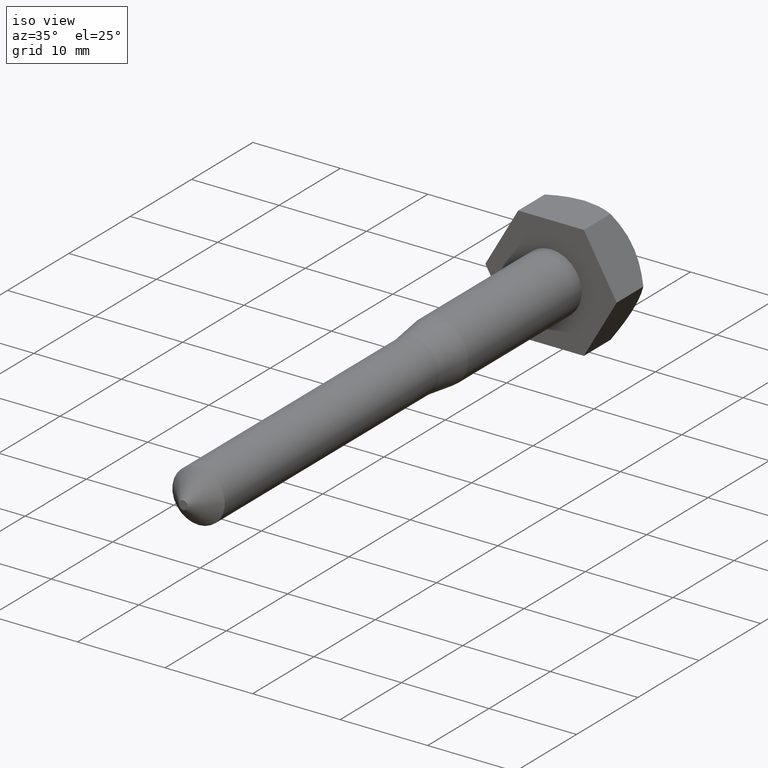
[diagram: clean part render]
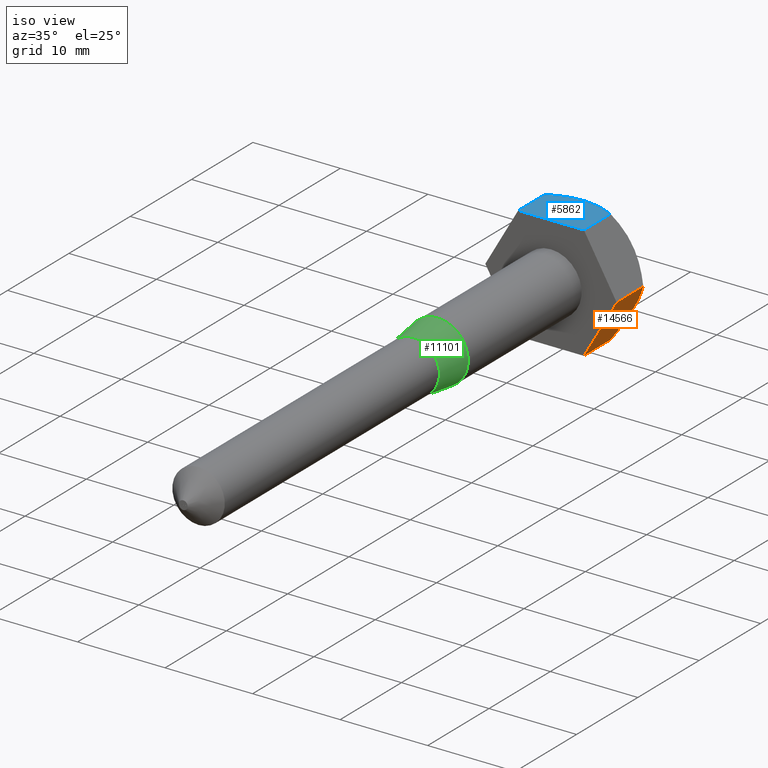
[diagram: same view with three faces highlighted in distinct colors, each labeled with its STEP entity id]
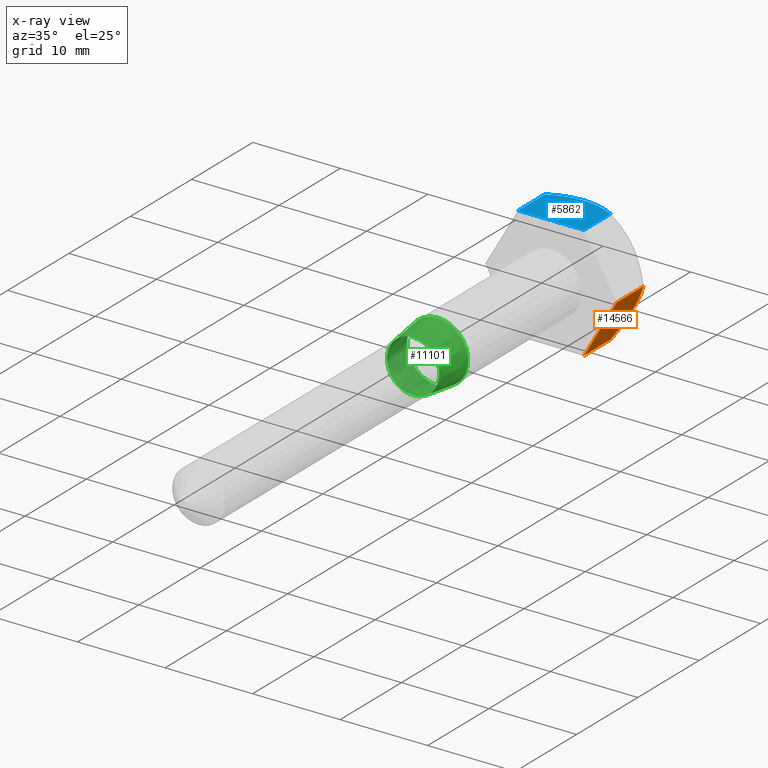
[diagram: x-ray of the same camera — body ghosted, the three highlighted faces saturated]
A machine part, iso view with three faces highlighted in distinct colors.
The next image is the same camera in x-ray (body ghosted, the three faces saturated) — at least one of them is partly hidden behind the body in this view.
Their STEP definitions:

[orange] entity #14566 — the highlighted planar face has unit normal (-0.866, 0, 0.5).
#243 = FACE_OUTER_BOUND ( 'NONE', #8477, .T. ) ;
#377 = DIRECTION ( 'NONE',  ( 0.5000000000000011100, 0.0000000000000000000, 0.8660254037844379300 ) ) ;
#606 = CARTESIAN_POINT ( 'NONE',  ( 4.045990535464324200, 1.887660286266630100, -5.992138825632978600 ) ) ;
#715 = CARTESIAN_POINT ( 'NONE',  ( 6.271878921056901900, 2.502165984431123500, -2.136787049809179000 ) ) ;
#900 = EDGE_CURVE ( 'NONE', #5948, #10868, #9643, .T. ) ;
#1118 = VECTOR ( 'NONE', #10081, 1000.000000000000000 ) ;
#1186 = LINE ( 'NONE', #11615, #15543 ) ;
#1248 = DIRECTION ( 'NONE',  ( -0.0000000000000000000, -1.000000000000000000, -0.0000000000000000000 ) ) ;
#1613 = ORIENTED_EDGE ( 'NONE', *, *, #2742, .T. ) ;
#1894 = CARTESIAN_POINT ( 'NONE',  ( 4.969631889421880700, 2.475181280895889300, -4.392345072606783400 ) ) ;
#1943 = CARTESIAN_POINT ( 'NONE',  ( 4.345818152688560900, 2.136964185732489300, -5.472822159088285500 ) ) ;
#1992 = CARTESIAN_POINT ( 'NONE',  ( 4.811646394920865400, 2.404118058024105900, -4.665983975941432300 ) ) ;
#2021 = EDGE_CURVE ( 'NONE', #13311, #5948, #8068, .T. ) ;
#2093 = CARTESIAN_POINT ( 'NONE',  ( 5.458453327953972900, 2.599288983918491600, -3.545681505240295900 ) ) ;
#2408 = CARTESIAN_POINT ( 'NONE',  ( 3.752776749732555500, -2.750000000000000000, -6.500000000000013300 ) ) ;
#2742 = EDGE_CURVE ( 'NONE', #10868, #10489, #1186, .T. ) ;
#2933 = PLANE ( 'NONE',  #6239 ) ;
#4001 = DIRECTION ( 'NONE',  ( -0.5000000000000011100, 0.0000000000000000000, -0.8660254037844380400 ) ) ;
#4129 = ORIENTED_EDGE ( 'NONE', *, *, #900, .T. ) ;
#4270 = CARTESIAN_POINT ( 'NONE',  ( 7.505553499465141200, 2.750000000000000000, 0.0000000000000000000 ) ) ;
#5669 = CARTESIAN_POINT ( 'NONE',  ( 5.949864958611479800, 2.601377983577025000, -2.694531593511224600 ) ) ;
#5828 = CARTESIAN_POINT ( 'NONE',  ( 6.906929487116232600, 2.142283660219720600, -1.036847204019038800 ) ) ;
#5880 = CARTESIAN_POINT ( 'NONE',  ( 7.210613000295526700, 1.889386999704607100, -0.5108519297714937400 ) ) ;
#5948 = VERTEX_POINT ( 'NONE', #10741 ) ;
#6239 = AXIS2_PLACEMENT_3D ( 'NONE', #4270, #15633, #377 ) ;
#7435 = CARTESIAN_POINT ( 'NONE',  ( 7.505553499465141200, -2.750000000000000000, 0.0000000000000000000 ) ) ;
#8068 = B_SPLINE_CURVE_WITH_KNOTS ( 'NONE', 3,
 ( #13299, #606, #1943, #1992, #1894, #10772, #2093, #5669, #715, #5828, #5880, #16036 ),
 .UNSPECIFIED., .F., .F.,
 ( 4, 2, 2, 2, 2, 4 ),
 ( 2.544317247021661600E-007, 0.001938488494164367100, 0.002907605525384200300, 0.003876722556604032400, 0.005814956619043699600, 0.007753190681483367200 ),
 .UNSPECIFIED. ) ;
#8477 = EDGE_LOOP ( 'NONE', ( #10290, #8793, #4129, #1613 ) ) ;
#8793 = ORIENTED_EDGE ( 'NONE', *, *, #2021, .T. ) ;
#8841 = CARTESIAN_POINT ( 'NONE',  ( 3.752776749732555500, 2.750000000000000000, -6.500000000000013300 ) ) ;
#9643 = LINE ( 'NONE', #15232, #1118 ) ;
#9749 = VECTOR ( 'NONE', #1248, 1000.000000000000000 ) ;
#10081 = DIRECTION ( 'NONE',  ( -0.0000000000000000000, -1.000000000000000000, -0.0000000000000000000 ) ) ;
#10290 = ORIENTED_EDGE ( 'NONE', *, *, #14892, .F. ) ;
#10489 = VERTEX_POINT ( 'NONE', #2408 ) ;
#10741 = CARTESIAN_POINT ( 'NONE',  ( 7.505553499465141200, 1.594446500534859600, 1.634709144449512600E-016 ) ) ;
#10772 = CARTESIAN_POINT ( 'NONE',  ( 5.292282599695952600, 2.572960391561880800, -3.833497649313915000 ) ) ;
#10868 = VERTEX_POINT ( 'NONE', #7435 ) ;
#11615 = CARTESIAN_POINT ( 'NONE',  ( 7.505553499465141200, -2.750000000000000000, 0.0000000000000000000 ) ) ;
#11796 = CARTESIAN_POINT ( 'NONE',  ( 3.752776749732555500, 1.594446500534860300, -6.500000000000013300 ) ) ;
#12961 = LINE ( 'NONE', #8841, #9749 ) ;
#13299 = CARTESIAN_POINT ( 'NONE',  ( 3.752776749732555500, 1.594446500534860300, -6.500000000000013300 ) ) ;
#13311 = VERTEX_POINT ( 'NONE', #11796 ) ;
#14566 = ADVANCED_FACE ( 'NONE', ( #243 ), #2933, .F. ) ;
#14892 = EDGE_CURVE ( 'NONE', #13311, #10489, #12961, .T. ) ;
#15232 = CARTESIAN_POINT ( 'NONE',  ( 7.505553499465141200, 2.750000000000000000, 0.0000000000000000000 ) ) ;
#15543 = VECTOR ( 'NONE', #4001, 1000.000000000000100 ) ;
#15633 = DIRECTION ( 'NONE',  ( -0.8660254037844380400, 0.0000000000000000000, 0.5000000000000012200 ) ) ;
#16036 = CARTESIAN_POINT ( 'NONE',  ( 7.505553499465141200, 1.594446500534859600, 1.634709144449512600E-016 ) ) ;

[blue] entity #5862 — the highlighted planar face has unit normal (-0, 0, -1).
#366 = CARTESIAN_POINT ( 'NONE',  ( 0.6611630339783198800, 2.599758780898719000, 6.499999999999993800 ) ) ;
#1262 = DIRECTION ( 'NONE',  ( 1.000000000000000000, 0.0000000000000000000, -1.040063952971876700E-014 ) ) ;
#1531 = EDGE_CURVE ( 'NONE', #6384, #5269, #13821, .T. ) ;
#1944 = CARTESIAN_POINT ( 'NONE',  ( 3.752776749732646500, 1.594446500534859600, 6.499999999999961800 ) ) ;
#2040 = ORIENTED_EDGE ( 'NONE', *, *, #6953, .T. ) ;
#3704 = CARTESIAN_POINT ( 'NONE',  ( -3.752776749732509700, 2.750000000000000000, 6.500000000000040000 ) ) ;
#3749 = CARTESIAN_POINT ( 'NONE',  ( 2.246751975634905000, 2.229265618263845700, 6.499999999999977800 ) ) ;
#3818 = LINE ( 'NONE', #5941, #10182 ) ;
#4262 = CARTESIAN_POINT ( 'NONE',  ( -1.618873802753864700, 2.408156339637963500, 6.500000000000017800 ) ) ;
#5269 = VERTEX_POINT ( 'NONE', #5462 ) ;
#5462 = CARTESIAN_POINT ( 'NONE',  ( -3.752776749732509700, 1.594446500534860000, 6.500000000000040000 ) ) ;
#5530 = CARTESIAN_POINT ( 'NONE',  ( -3.170685935282914400, 1.885491907759659700, 6.500000000000033800 ) ) ;
#5537 = ORIENTED_EDGE ( 'NONE', *, *, #1531, .T. ) ;
#5698 = LINE ( 'NONE', #15296, #11061 ) ;
#5862 = ADVANCED_FACE ( 'NONE', ( #13905 ), #10040, .F. ) ;
#5941 = CARTESIAN_POINT ( 'NONE',  ( 3.752776749732646100, 2.750000000000000000, 6.499999999999961800 ) ) ;
#6384 = VERTEX_POINT ( 'NONE', #1944 ) ;
#6776 = AXIS2_PLACEMENT_3D ( 'NONE', #3704, #12611, #13740 ) ;
#6805 = CARTESIAN_POINT ( 'NONE',  ( -3.752776749732509700, 1.594446500534860000, 6.500000000000040000 ) ) ;
#6953 = EDGE_CURVE ( 'NONE', #10404, #11433, #5698, .T. ) ;
#7115 = CARTESIAN_POINT ( 'NONE',  ( 3.752776749732646500, 1.594446500534859600, 6.499999999999961800 ) ) ;
#7284 = CARTESIAN_POINT ( 'NONE',  ( 3.752776749732646100, -2.750000000000000000, 6.499999999999961800 ) ) ;
#7517 = CARTESIAN_POINT ( 'NONE',  ( 3.166446518813849800, 1.875095949671514900, 6.499999999999968000 ) ) ;
#7545 = LINE ( 'NONE', #13235, #10343 ) ;
#7946 = CARTESIAN_POINT ( 'NONE',  ( 1.303128123275191200, 2.498142009776364700, 6.499999999999987600 ) ) ;
#8485 = DIRECTION ( 'NONE',  ( -0.0000000000000000000, -1.000000000000000000, -0.0000000000000000000 ) ) ;
#9232 = CARTESIAN_POINT ( 'NONE',  ( -0.3270179186762907600, 2.600119958307988800, 6.500000000000004400 ) ) ;
#10040 = PLANE ( 'NONE',  #6776 ) ;
#10182 = VECTOR ( 'NONE', #8485, 1000.000000000000000 ) ;
#10343 = VECTOR ( 'NONE', #14748, 1000.000000000000000 ) ;
#10404 = VERTEX_POINT ( 'NONE', #13496 ) ;
#11009 = ORIENTED_EDGE ( 'NONE', *, *, #13790, .F. ) ;
#11061 = VECTOR ( 'NONE', #1262, 1000.000000000000000 ) ;
#11433 = VERTEX_POINT ( 'NONE', #7284 ) ;
#11878 = CARTESIAN_POINT ( 'NONE',  ( -1.301690308187831300, 2.478607435269641400, 6.500000000000014200 ) ) ;
#12611 = DIRECTION ( 'NONE',  ( -1.040063952971876700E-014, 0.0000000000000000000, -1.000000000000000000 ) ) ;
#13115 = CARTESIAN_POINT ( 'NONE',  ( -0.6571317202279742800, 2.574644535692630900, 6.500000000000006200 ) ) ;
#13166 = CARTESIAN_POINT ( 'NONE',  ( -2.557680666506174200, 2.140703546064562300, 6.500000000000026600 ) ) ;
#13235 = CARTESIAN_POINT ( 'NONE',  ( -3.752776749732509700, 2.750000000000000000, 6.500000000000040000 ) ) ;
#13496 = CARTESIAN_POINT ( 'NONE',  ( -3.752776749732509700, -2.750000000000000000, 6.500000000000040000 ) ) ;
#13740 = DIRECTION ( 'NONE',  ( -1.000000000000000000, 0.0000000000000000000, 1.040063952971876700E-014 ) ) ;
#13781 = EDGE_LOOP ( 'NONE', ( #11009, #5537, #16004, #2040 ) ) ;
#13790 = EDGE_CURVE ( 'NONE', #6384, #11433, #3818, .T. ) ;
#13821 = B_SPLINE_CURVE_WITH_KNOTS ( 'NONE', 3,
 ( #7115, #16124, #7517, #16480, #3749, #7946, #366, #9232, #13115, #11878, #4262, #13166, #5530, #6805 ),
 .UNSPECIFIED., .F., .F.,
 ( 4, 2, 2, 2, 2, 2, 4 ),
 ( 0.003947042996591446100, 0.004919358797101759100, 0.005891674597612072200, 0.007836306198632698300, 0.008808621999143014000, 0.009780937799653326200, 0.01172556940067395600 ),
 .UNSPECIFIED. ) ;
#13905 = FACE_OUTER_BOUND ( 'NONE', #13781, .T. ) ;
#14748 = DIRECTION ( 'NONE',  ( -0.0000000000000000000, -1.000000000000000000, -0.0000000000000000000 ) ) ;
#15296 = CARTESIAN_POINT ( 'NONE',  ( -3.752776749732509700, -2.750000000000000000, 6.500000000000040000 ) ) ;
#15382 = EDGE_CURVE ( 'NONE', #5269, #10404, #7545, .T. ) ;
#16004 = ORIENTED_EDGE ( 'NONE', *, *, #15382, .T. ) ;
#16124 = CARTESIAN_POINT ( 'NONE',  ( 3.462404181496590500, 1.739632784652890300, 6.499999999999963600 ) ) ;
#16480 = CARTESIAN_POINT ( 'NONE',  ( 2.559450289250838400, 2.119767857507110600, 6.499999999999972500 ) ) ;

[green] entity #11101 — the highlighted conical surface has half-angle 7.125 deg.
#595 = AXIS2_PLACEMENT_3D ( 'NONE', #1289, #7541, #16512 ) ;
#791 = DIRECTION ( 'NONE',  ( 0.0000000000000000000, 0.0000000000000000000, -1.000000000000000000 ) ) ;
#1289 = CARTESIAN_POINT ( 'NONE',  ( 0.0000000000000000000, -21.24999999999999600, 0.0000000000000000000 ) ) ;
#1405 = EDGE_LOOP ( 'NONE', ( #11883 ) ) ;
#1648 = CIRCLE ( 'NONE', #595, 3.500000000000000900 ) ;
#2582 = CIRCLE ( 'NONE', #16001, 3.000000000000002200 ) ;
#2852 = EDGE_LOOP ( 'NONE', ( #10281 ) ) ;
#4346 = DIRECTION ( 'NONE',  ( 0.0000000000000000000, 1.000000000000000000, 0.0000000000000000000 ) ) ;
#5712 = AXIS2_PLACEMENT_3D ( 'NONE', #12016, #4346, #8418 ) ;
#5900 = CARTESIAN_POINT ( 'NONE',  ( 0.0000000000000000000, -25.24999999999999600, 0.0000000000000000000 ) ) ;
#6638 = FACE_OUTER_BOUND ( 'NONE', #1405, .T. ) ;
#7439 = CARTESIAN_POINT ( 'NONE',  ( 0.0000000000000000000, -25.24999999999999600, -3.000000000000002200 ) ) ;
#7541 = DIRECTION ( 'NONE',  ( -0.0000000000000000000, -1.000000000000000000, -0.0000000000000000000 ) ) ;
#8224 = DIRECTION ( 'NONE',  ( -0.0000000000000000000, -1.000000000000000000, -0.0000000000000000000 ) ) ;
#8418 = DIRECTION ( 'NONE',  ( 0.0000000000000000000, 0.0000000000000000000, 1.000000000000000000 ) ) ;
#10281 = ORIENTED_EDGE ( 'NONE', *, *, #16494, .F. ) ;
#11101 = ADVANCED_FACE ( 'NONE', ( #6638, #16439 ), #15225, .T. ) ;
#11883 = ORIENTED_EDGE ( 'NONE', *, *, #13254, .T. ) ;
#12016 = CARTESIAN_POINT ( 'NONE',  ( 0.0000000000000000000, -25.24999999999999600, 0.0000000000000000000 ) ) ;
#12360 = CARTESIAN_POINT ( 'NONE',  ( 0.0000000000000000000, -21.24999999999999600, -3.500000000000000900 ) ) ;
#13254 = EDGE_CURVE ( 'NONE', #15551, #15551, #1648, .T. ) ;
#15142 = VERTEX_POINT ( 'NONE', #7439 ) ;
#15225 = CONICAL_SURFACE ( 'NONE', #5712, 3.000000000000002200, 0.1243549945467611200 ) ;
#15551 = VERTEX_POINT ( 'NONE', #12360 ) ;
#16001 = AXIS2_PLACEMENT_3D ( 'NONE', #5900, #8224, #791 ) ;
#16439 = FACE_BOUND ( 'NONE', #2852, .T. ) ;
#16494 = EDGE_CURVE ( 'NONE', #15142, #15142, #2582, .T. ) ;
#16512 = DIRECTION ( 'NONE',  ( 0.0000000000000000000, 0.0000000000000000000, -1.000000000000000000 ) ) ;